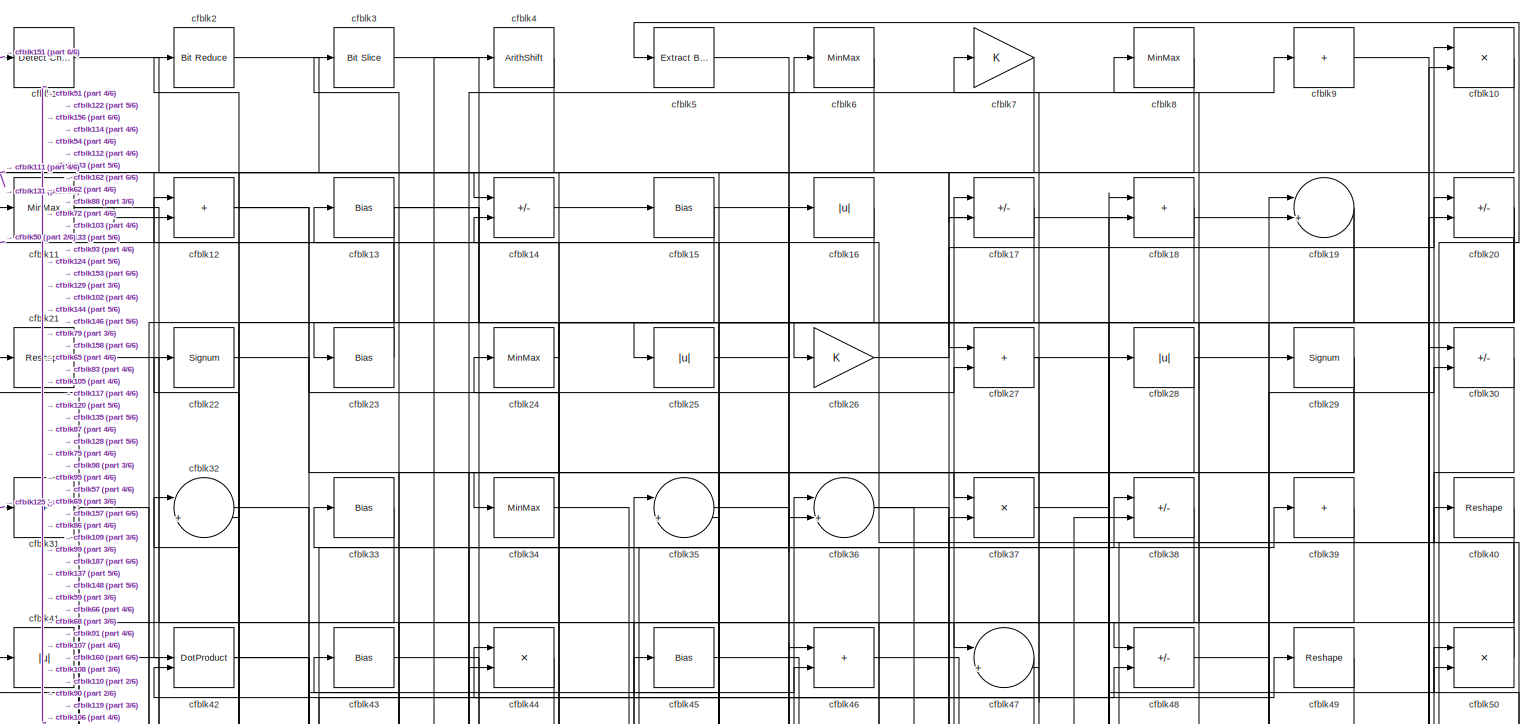
[diagram: root canvas - part 1/6, full width, top band]
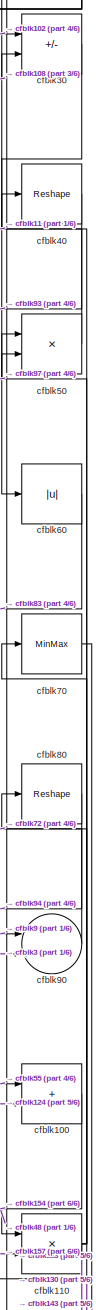
[diagram: root canvas - part 2/6, middle right region]
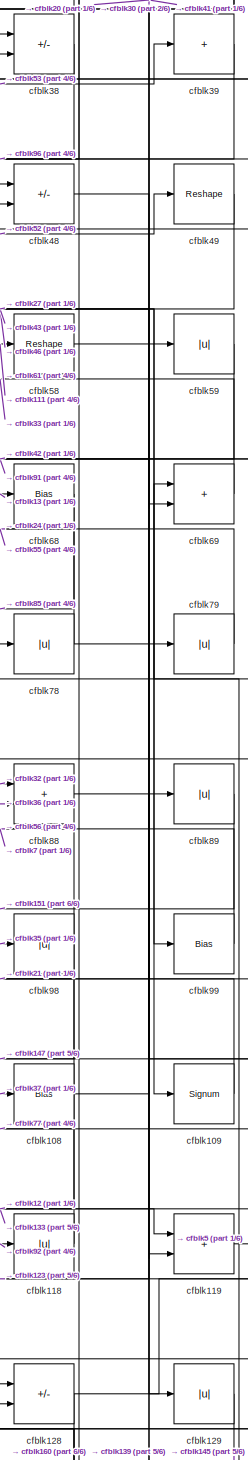
[diagram: root canvas - part 3/6, middle right region]
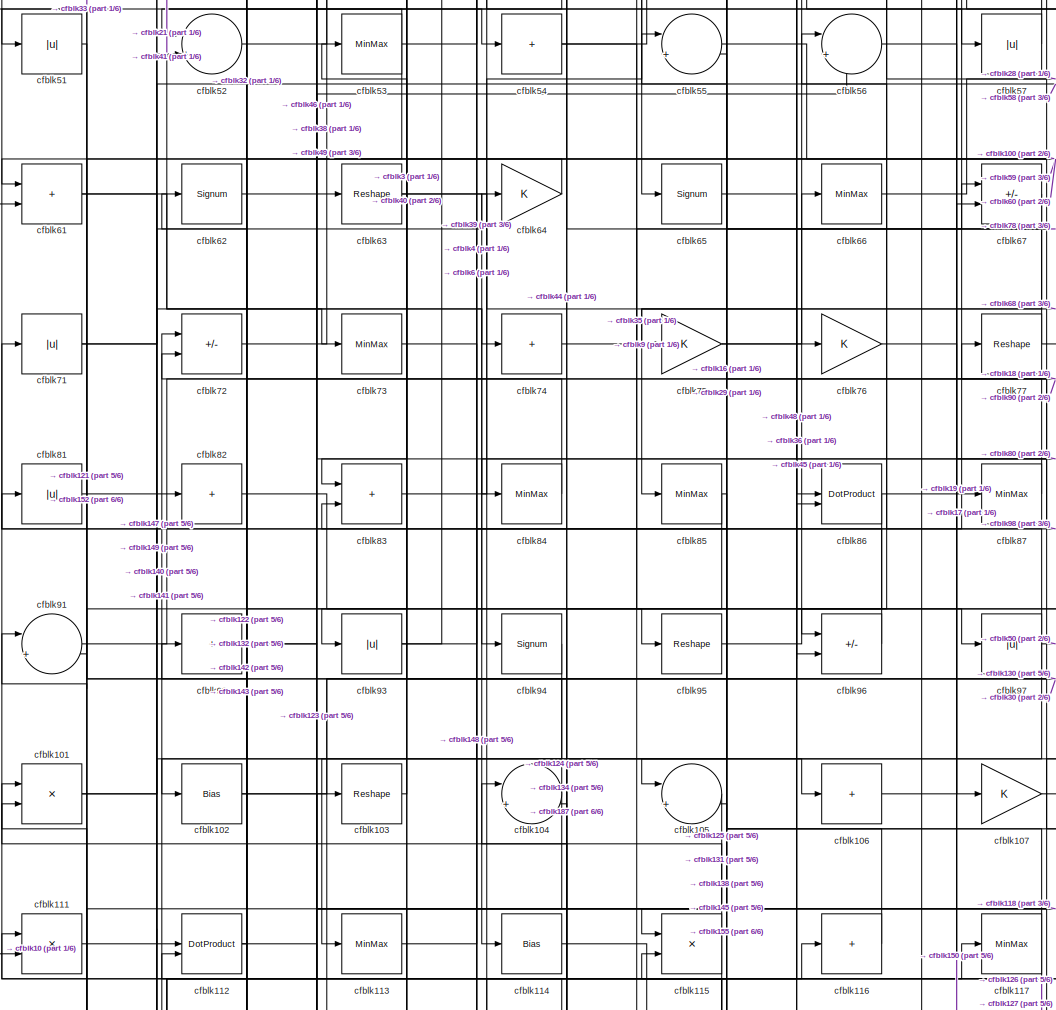
[diagram: root canvas - part 4/6, central region]
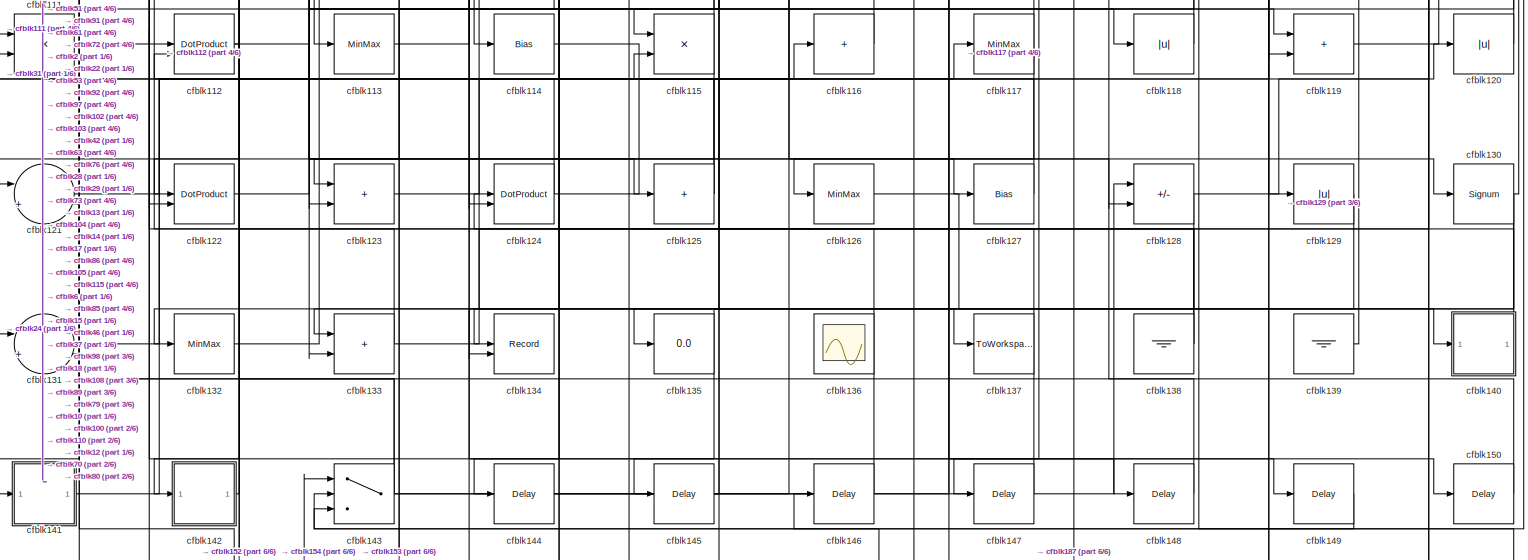
[diagram: root canvas - part 5/6, full width, bottom band]
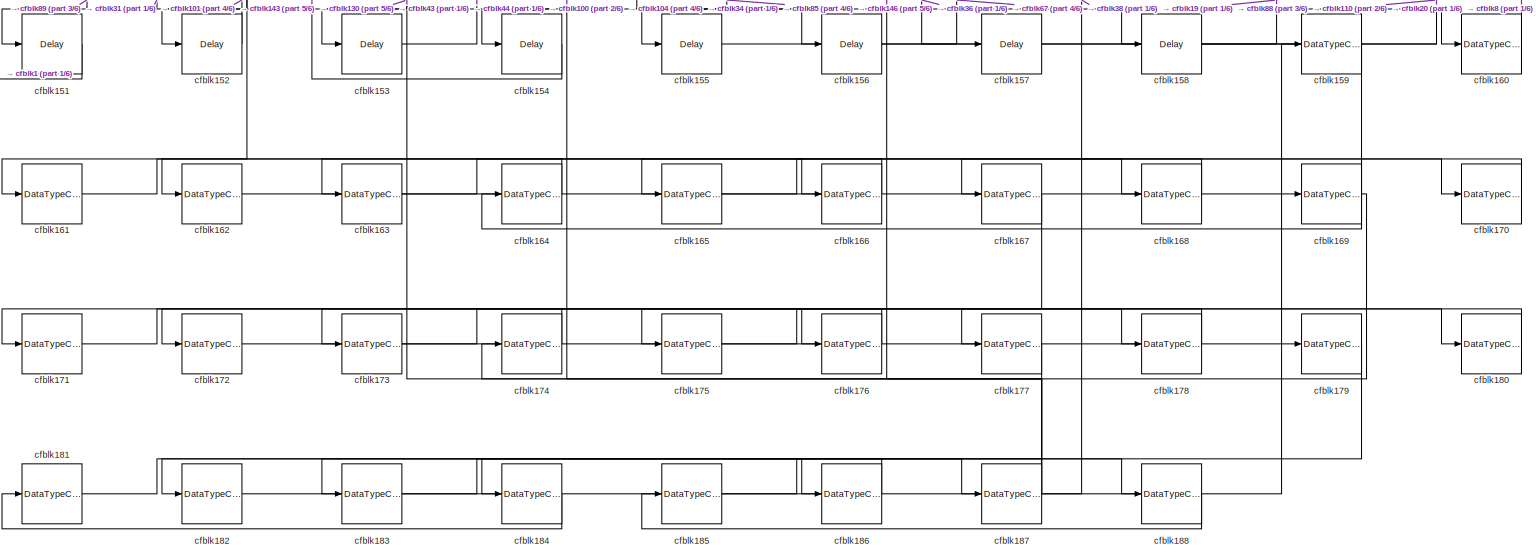
[diagram: root canvas - part 6/6, full width, bottom band]
MODEL slx_348a11d8d792
KIND model
CONFIG AbsTol = auto
CONFIG EnableMultiTasking = off
CONFIG FixedStep = auto
CONFIG MaxStep = auto
CONFIG MinStep = auto
CONFIG RelTol = 1e-3
CONFIG SampleTimeConstraint = Unconstrained
CONFIG SolverName = VariableStepAuto
CONFIG StartTime = 0.0
CONFIG StopTime = 10.0
BLOCK [Reference] cfblk1  REF=simulink/Logic and Bit
Operations/Detect
Change
  LibrarySourceBlock = hdlsllib/Logic and Bit\nOperations/Detect\nChange
  SourceBlock = simulink/Logic and Bit\nOperations/Detect\nChange
  SourceType = Detect Change
BLOCK [Product] cfblk10
  Inputs = */
  RndMeth = Zero
  SaturateOnIntegerOverflow = on
BLOCK [Sum] cfblk100
  IconShape = rectangular
BLOCK [Product] cfblk101
  Inputs = */
  RndMeth = Zero
  SaturateOnIntegerOverflow = on
BLOCK [Bias] cfblk102
  Bias = 0.0
  SaturateOnIntegerOverflow = off
BLOCK [Reshape] cfblk103
BLOCK [Sum] cfblk104
  Inputs = |++
BLOCK [Sum] cfblk105
  Inputs = |++
BLOCK [Sum] cfblk106
  IconShape = rectangular
  Inputs = +
BLOCK [Gain] cfblk107
BLOCK [Bias] cfblk108
  Bias = 0.0
  SaturateOnIntegerOverflow = off
BLOCK [Signum] cfblk109
BLOCK [MinMax] cfblk11
BLOCK [Product] cfblk110
  Inputs = */
  RndMeth = Zero
  SaturateOnIntegerOverflow = on
BLOCK [Product] cfblk111
  Inputs = */
  RndMeth = Zero
  SaturateOnIntegerOverflow = on
BLOCK [DotProduct] cfblk112
  OutDataTypeStr = Inherit: Inherit via internal rule
BLOCK [MinMax] cfblk113
BLOCK [Bias] cfblk114
  Bias = 0.0
  SaturateOnIntegerOverflow = off
BLOCK [Product] cfblk115
  Inputs = */
  RndMeth = Zero
  SaturateOnIntegerOverflow = on
BLOCK [Sum] cfblk116
  IconShape = rectangular
  Inputs = +
BLOCK [MinMax] cfblk117
BLOCK [Abs] cfblk118
  SaturateOnIntegerOverflow = off
BLOCK [Sum] cfblk119
  IconShape = rectangular
BLOCK [Sum] cfblk12
  IconShape = rectangular
BLOCK [Abs] cfblk120
  SaturateOnIntegerOverflow = off
BLOCK [Sum] cfblk121
  Inputs = |++
BLOCK [DotProduct] cfblk122
  OutDataTypeStr = Inherit: Inherit via internal rule
BLOCK [Sum] cfblk123
  IconShape = rectangular
BLOCK [DotProduct] cfblk124
  OutDataTypeStr = Inherit: Inherit via internal rule
BLOCK [Sum] cfblk125
  IconShape = rectangular
  Inputs = +
BLOCK [MinMax] cfblk126
BLOCK [Bias] cfblk127
  Bias = 0.0
  SaturateOnIntegerOverflow = off
BLOCK [Sum] cfblk128
  IconShape = rectangular
  Inputs = +-
BLOCK [Abs] cfblk129
  SaturateOnIntegerOverflow = off
BLOCK [Bias] cfblk13
  Bias = 0.0
  SaturateOnIntegerOverflow = off
BLOCK [Signum] cfblk130
BLOCK [Sum] cfblk131
  Inputs = |++
BLOCK [MinMax] cfblk132
BLOCK [Sum] cfblk133
  IconShape = rectangular
BLOCK [Record] cfblk134
  CompatibilityTag = XY
  FileSettingsInternal = {"entries":[{"content":{"excelSettings":{"content":{},"type":"Streamout.ExcelSettings"}},"type":"Streamout.FileSettingStorage","uuid":""}],"packageUris":["http:\/\/schema.mathworks.com\/mf0\/streamout_blocks\/R2020a"],"version":"1.0"}
  Layout = [1 1]
  SignalsInternal = {"entries":[{"content":{"signals":[{"content":{"blockPath":[],"dimensions":[1],"domain":"","lineColor":"#a2142f","plots":[1],"port":1,"signalID":1904,"signalName":"XY Graph:1"},"type":"RecordBlkView.Signal","uuid":""},{"content":{"blockPath":[],"dimensions":[1],"domain":"","lineColor":"#139fff","plots":[1],"port":2,"signalID":1907,"signalName":"XY Graph:2"},"type":"RecordBlkView.Signal","uuid":""}...<+146ch>
  VisualizationBindings = {"xyplotplugin":{"info":[{"series":[{"bindingParametersList":[{"parameter":"X-Axis","signalID":1904,"signalName":"XY Graph:1"},{"parameter":"Y-Axis","signalID":1907,"signalName":"XY Graph:2"}],"seriesID":52600}],"subplotID":1}]}}
  st = -1
BLOCK [Display] cfblk135
  Decimation = 1
BLOCK [Scope] cfblk136
  Floating = on
  NumInputPorts = 1
  ScopeSpecificationString = Simulink.scopes.TimeScopeBlockCfg('CurrentConfiguration', extmgr.ConfigurationSet(extmgr.Configuration('Core','General UI',true,'FigureColor',[0.156862745098039 0.156862745098039 0.156862745098039]),extmgr.Configuration('Core','Source UI',true),extmgr.Configuration('Sources','WiredSimulink',true,'DataLoggingVariableName','ScopeData1','DataLoggingSaveFormat','StructureWithTime','DataLoggingLimitDat...<+2713ch>
BLOCK [ToWorkspace] cfblk137
  MaxDataPoints = inf
  SampleTime = -1
  SaveFormat = Timeseries
  VariableName = simout
BLOCK [Ground] cfblk138
BLOCK [Ground] cfblk139
BLOCK [Sum] cfblk14
  IconShape = rectangular
  Inputs = +-
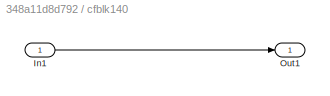
BLOCK [SubSystem] cfblk140
  LibrarySourceBlock = hdlsllib/Ports &\nSubsystems/Subsystem
BLOCK [Inport] cfblk140/In1
BLOCK [Outport] cfblk140/Out1
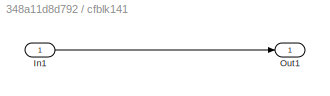
BLOCK [SubSystem] cfblk141
  LibrarySourceBlock = hdlsllib/Ports &\nSubsystems/Subsystem
BLOCK [Inport] cfblk141/In1
BLOCK [Outport] cfblk141/Out1
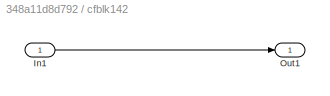
BLOCK [SubSystem] cfblk142
  LibrarySourceBlock = hdlsllib/Ports &\nSubsystems/Subsystem
BLOCK [Inport] cfblk142/In1
BLOCK [Outport] cfblk142/Out1
BLOCK [Switch] cfblk143
  InputSameDT = off
  SaturateOnIntegerOverflow = off
BLOCK [Delay] cfblk144
  InputPortMap = u0
  SampleTime = 1
BLOCK [Delay] cfblk145
  InputPortMap = u0
  SampleTime = 1
BLOCK [Delay] cfblk146
  InputPortMap = u0
  SampleTime = 1
BLOCK [Delay] cfblk147
  InputPortMap = u0
  SampleTime = 1
BLOCK [Delay] cfblk148
  InputPortMap = u0
  SampleTime = 1
BLOCK [Delay] cfblk149
  InputPortMap = u0
  SampleTime = 1
BLOCK [Bias] cfblk15
  Bias = 0.0
  SaturateOnIntegerOverflow = off
BLOCK [Delay] cfblk150
  InputPortMap = u0
  SampleTime = 1
BLOCK [Delay] cfblk151
  InputPortMap = u0
  SampleTime = 1
BLOCK [Delay] cfblk152
  InputPortMap = u0
  SampleTime = 1
BLOCK [Delay] cfblk153
  InputPortMap = u0
  SampleTime = 1
BLOCK [Delay] cfblk154
  InputPortMap = u0
  SampleTime = 1
BLOCK [Delay] cfblk155
  InputPortMap = u0
  SampleTime = 1
BLOCK [Delay] cfblk156
  InputPortMap = u0
  SampleTime = 1
BLOCK [Delay] cfblk157
  InputPortMap = u0
  SampleTime = 1
BLOCK [Delay] cfblk158
  InputPortMap = u0
  SampleTime = 1
BLOCK [DataTypeConversion] cfblk159
  RndMeth = Floor
  SaturateOnIntegerOverflow = off
BLOCK [Abs] cfblk16
  SaturateOnIntegerOverflow = off
BLOCK [DataTypeConversion] cfblk160
  OutDataTypeStr = uint8
  RndMeth = Floor
  SaturateOnIntegerOverflow = off
BLOCK [DataTypeConversion] cfblk161
  RndMeth = Floor
  SaturateOnIntegerOverflow = off
BLOCK [DataTypeConversion] cfblk162
  OutDataTypeStr = uint8
  RndMeth = Floor
  SaturateOnIntegerOverflow = off
BLOCK [DataTypeConversion] cfblk163
  RndMeth = Floor
  SaturateOnIntegerOverflow = off
BLOCK [DataTypeConversion] cfblk164
  OutDataTypeStr = uint8
  RndMeth = Floor
  SaturateOnIntegerOverflow = off
BLOCK [DataTypeConversion] cfblk165
  RndMeth = Floor
  SaturateOnIntegerOverflow = off
BLOCK [DataTypeConversion] cfblk166
  OutDataTypeStr = uint8
  RndMeth = Floor
  SaturateOnIntegerOverflow = off
BLOCK [DataTypeConversion] cfblk167
  RndMeth = Floor
  SaturateOnIntegerOverflow = off
BLOCK [DataTypeConversion] cfblk168
  OutDataTypeStr = uint8
  RndMeth = Floor
  SaturateOnIntegerOverflow = off
BLOCK [DataTypeConversion] cfblk169
  RndMeth = Floor
  SaturateOnIntegerOverflow = off
BLOCK [Sum] cfblk17
  IconShape = rectangular
  Inputs = +-
BLOCK [DataTypeConversion] cfblk170
  OutDataTypeStr = uint8
  RndMeth = Floor
  SaturateOnIntegerOverflow = off
BLOCK [DataTypeConversion] cfblk171
  RndMeth = Floor
  SaturateOnIntegerOverflow = off
BLOCK [DataTypeConversion] cfblk172
  OutDataTypeStr = uint8
  RndMeth = Floor
  SaturateOnIntegerOverflow = off
BLOCK [DataTypeConversion] cfblk173
  RndMeth = Floor
  SaturateOnIntegerOverflow = off
BLOCK [DataTypeConversion] cfblk174
  OutDataTypeStr = uint8
  RndMeth = Floor
  SaturateOnIntegerOverflow = off
BLOCK [DataTypeConversion] cfblk175
  RndMeth = Floor
  SaturateOnIntegerOverflow = off
BLOCK [DataTypeConversion] cfblk176
  OutDataTypeStr = uint8
  RndMeth = Floor
  SaturateOnIntegerOverflow = off
BLOCK [DataTypeConversion] cfblk177
  RndMeth = Floor
  SaturateOnIntegerOverflow = off
BLOCK [DataTypeConversion] cfblk178
  OutDataTypeStr = uint8
  RndMeth = Floor
  SaturateOnIntegerOverflow = off
BLOCK [DataTypeConversion] cfblk179
  RndMeth = Floor
  SaturateOnIntegerOverflow = off
BLOCK [Sum] cfblk18
  IconShape = rectangular
BLOCK [DataTypeConversion] cfblk180
  OutDataTypeStr = uint8
  RndMeth = Floor
  SaturateOnIntegerOverflow = off
BLOCK [DataTypeConversion] cfblk181
  RndMeth = Floor
  SaturateOnIntegerOverflow = off
BLOCK [DataTypeConversion] cfblk182
  OutDataTypeStr = uint8
  RndMeth = Floor
  SaturateOnIntegerOverflow = off
BLOCK [DataTypeConversion] cfblk183
  RndMeth = Floor
  SaturateOnIntegerOverflow = off
BLOCK [DataTypeConversion] cfblk184
  OutDataTypeStr = uint8
  RndMeth = Floor
  SaturateOnIntegerOverflow = off
BLOCK [DataTypeConversion] cfblk185
  RndMeth = Floor
  SaturateOnIntegerOverflow = off
BLOCK [DataTypeConversion] cfblk186
  OutDataTypeStr = uint8
  RndMeth = Floor
  SaturateOnIntegerOverflow = off
BLOCK [DataTypeConversion] cfblk187
  RndMeth = Floor
  SaturateOnIntegerOverflow = off
BLOCK [DataTypeConversion] cfblk188
  OutDataTypeStr = uint8
  RndMeth = Floor
  SaturateOnIntegerOverflow = off
BLOCK [Sum] cfblk19
  Inputs = |++
BLOCK [Reference] cfblk2  REF=hdlsllib/Logic and Bit
Operations/Bit Reduce
  SourceBlock = hdlsllib/Logic and Bit\nOperations/Bit Reduce
  SourceType = Bit Reduce
BLOCK [Sum] cfblk20
  IconShape = rectangular
  Inputs = +-
BLOCK [Reshape] cfblk21
BLOCK [Signum] cfblk22
BLOCK [Bias] cfblk23
  Bias = 0.0
  SaturateOnIntegerOverflow = off
BLOCK [MinMax] cfblk24
BLOCK [Abs] cfblk25
  SaturateOnIntegerOverflow = off
BLOCK [Gain] cfblk26
BLOCK [Sum] cfblk27
  IconShape = rectangular
BLOCK [Abs] cfblk28
  SaturateOnIntegerOverflow = off
BLOCK [Signum] cfblk29
BLOCK [Reference] cfblk3  REF=hdlsllib/Logic and Bit
Operations/Bit Slice
  SourceBlock = hdlsllib/Logic and Bit\nOperations/Bit Slice
  SourceType = Bit Slice
BLOCK [Sum] cfblk30
  IconShape = rectangular
  Inputs = +-
BLOCK [Sum] cfblk31
  IconShape = rectangular
  Inputs = +
BLOCK [Sum] cfblk32
  Inputs = |++
BLOCK [Bias] cfblk33
  Bias = 0.0
  SaturateOnIntegerOverflow = off
BLOCK [MinMax] cfblk34
BLOCK [Sum] cfblk35
  Inputs = |++
BLOCK [Sum] cfblk36
  Inputs = |++
BLOCK [Product] cfblk37
  Inputs = */
  RndMeth = Zero
  SaturateOnIntegerOverflow = on
BLOCK [Sum] cfblk38
  IconShape = rectangular
  Inputs = +-
BLOCK [Sum] cfblk39
  IconShape = rectangular
  Inputs = +
BLOCK [ArithShift] cfblk4
  BitShiftNumber = 8
  InputPortMap = u0
BLOCK [Reshape] cfblk40
BLOCK [Abs] cfblk41
  SaturateOnIntegerOverflow = off
BLOCK [DotProduct] cfblk42
  OutDataTypeStr = Inherit: Inherit via internal rule
BLOCK [Bias] cfblk43
  Bias = 0.0
  SaturateOnIntegerOverflow = off
BLOCK [Product] cfblk44
  Inputs = */
  RndMeth = Zero
  SaturateOnIntegerOverflow = on
BLOCK [Bias] cfblk45
  Bias = 0.0
  SaturateOnIntegerOverflow = off
BLOCK [Sum] cfblk46
  IconShape = rectangular
BLOCK [Sum] cfblk47
  Inputs = |++
BLOCK [Sum] cfblk48
  IconShape = rectangular
  Inputs = +-
BLOCK [Reshape] cfblk49
BLOCK [Reference] cfblk5  REF=simulink/Logic and Bit
Operations/Extract Bits
  LibrarySourceBlock = hdlsllib/Logic and Bit\nOperations/Extract Bits
  SourceBlock = simulink/Logic and Bit\nOperations/Extract Bits
  SourceType = Extract Bits
BLOCK [Product] cfblk50
  Inputs = */
  RndMeth = Zero
  SaturateOnIntegerOverflow = on
BLOCK [Abs] cfblk51
  SaturateOnIntegerOverflow = off
BLOCK [Sum] cfblk52
  Inputs = |++
BLOCK [MinMax] cfblk53
BLOCK [Sum] cfblk54
  IconShape = rectangular
  Inputs = +
BLOCK [Sum] cfblk55
  Inputs = |++
BLOCK [Sum] cfblk56
  Inputs = |++
BLOCK [Abs] cfblk57
  SaturateOnIntegerOverflow = off
BLOCK [Reshape] cfblk58
BLOCK [Abs] cfblk59
  SaturateOnIntegerOverflow = off
BLOCK [MinMax] cfblk6
BLOCK [Abs] cfblk60
  SaturateOnIntegerOverflow = off
BLOCK [Sum] cfblk61
  IconShape = rectangular
BLOCK [Signum] cfblk62
BLOCK [Reshape] cfblk63
BLOCK [Gain] cfblk64
BLOCK [Signum] cfblk65
BLOCK [MinMax] cfblk66
BLOCK [Sum] cfblk67
  IconShape = rectangular
  Inputs = +-
BLOCK [Bias] cfblk68
  Bias = 0.0
  SaturateOnIntegerOverflow = off
BLOCK [Sum] cfblk69
  IconShape = rectangular
BLOCK [Gain] cfblk7
BLOCK [MinMax] cfblk70
BLOCK [Abs] cfblk71
  SaturateOnIntegerOverflow = off
BLOCK [Sum] cfblk72
  IconShape = rectangular
  Inputs = +-
BLOCK [MinMax] cfblk73
BLOCK [Sum] cfblk74
  IconShape = rectangular
  Inputs = +
BLOCK [Gain] cfblk75
BLOCK [Gain] cfblk76
BLOCK [Reshape] cfblk77
BLOCK [Abs] cfblk78
  SaturateOnIntegerOverflow = off
BLOCK [Abs] cfblk79
  SaturateOnIntegerOverflow = off
BLOCK [MinMax] cfblk8
BLOCK [Reshape] cfblk80
BLOCK [Abs] cfblk81
  SaturateOnIntegerOverflow = off
BLOCK [Sum] cfblk82
  IconShape = rectangular
  Inputs = +
BLOCK [Sum] cfblk83
  IconShape = rectangular
BLOCK [MinMax] cfblk84
BLOCK [MinMax] cfblk85
BLOCK [DotProduct] cfblk86
  OutDataTypeStr = Inherit: Inherit via internal rule
BLOCK [MinMax] cfblk87
BLOCK [Sum] cfblk88
  IconShape = rectangular
BLOCK [Abs] cfblk89
  SaturateOnIntegerOverflow = off
BLOCK [Sum] cfblk9
  IconShape = rectangular
  Inputs = +
BLOCK [Sum] cfblk90
  Inputs = |++
BLOCK [Sum] cfblk91
  Inputs = |++
BLOCK [Sum] cfblk92
  IconShape = rectangular
  Inputs = +
BLOCK [Abs] cfblk93
  SaturateOnIntegerOverflow = off
BLOCK [Signum] cfblk94
BLOCK [Reshape] cfblk95
BLOCK [Sum] cfblk96
  IconShape = rectangular
  Inputs = +-
BLOCK [Abs] cfblk97
  SaturateOnIntegerOverflow = off
BLOCK [Abs] cfblk98
  SaturateOnIntegerOverflow = off
BLOCK [Bias] cfblk99
  Bias = 0.0
  SaturateOnIntegerOverflow = off
LINE cfblk100:1 -> cfblk154:1
NET cfblk101:1 -> cfblk106:1, cfblk52:2
NET cfblk102:1 -> cfblk130:1, cfblk30:1
LINE cfblk103:1 -> cfblk3:1
NET cfblk104:1 -> cfblk123:2, cfblk53:1
LINE cfblk105:1 -> cfblk121:1
LINE cfblk106:1 -> cfblk19:2
LINE cfblk107:1 -> cfblk10:1
NET cfblk108:1 -> cfblk133:2, cfblk30:2, cfblk41:1
LINE cfblk109:1 -> cfblk21:1
LINE cfblk10:1 -> cfblk111:2
NET cfblk110:1 -> cfblk123:1, cfblk40:1, cfblk50:2, cfblk70:1
LINE cfblk111:1 -> cfblk58:1
NET cfblk112:1 -> cfblk127:1, cfblk32:1
LINE cfblk113:1 -> cfblk87:1
LINE cfblk114:1 -> cfblk116:1
NET cfblk115:1 -> cfblk101:1, cfblk131:2
LINE cfblk116:1 -> cfblk81:1
NET cfblk117:1 -> cfblk126:1, cfblk45:1
LINE cfblk118:1 -> cfblk77:1
LINE cfblk119:1 -> cfblk5:1
NET cfblk11:1 -> cfblk12:2, cfblk47:1
LINE cfblk120:1 -> cfblk12:1
LINE cfblk121:1 -> cfblk63:1
LINE cfblk122:1 -> cfblk103:1
LINE cfblk123:1 -> cfblk89:1
NET cfblk124:1 -> cfblk100:2, cfblk91:1
NET cfblk125:1 -> cfblk104:2, cfblk31:1
LINE cfblk126:1 -> cfblk140:1
LINE cfblk127:1 -> cfblk72:1
NET cfblk128:1 -> cfblk120:1, cfblk134:2
LINE cfblk129:1 -> cfblk145:1
NET cfblk12:1 -> cfblk119:1, cfblk37:1
NET cfblk130:1 -> cfblk152:1, cfblk153:1, cfblk80:1
LINE cfblk131:1 -> cfblk86:2
LINE cfblk132:1 -> cfblk76:1
NET cfblk133:1 -> cfblk10:2, cfblk2:1
NET cfblk138:1 -> cfblk105:2, cfblk124:1
LINE cfblk139:1 -> cfblk79:1
NET cfblk13:1 -> cfblk122:2, cfblk137:1, cfblk68:1
LINE cfblk140/In1:1 -> cfblk140/Out1:1
LINE cfblk140:1 -> cfblk112:2
LINE cfblk141/In1:1 -> cfblk141/Out1:1
LINE cfblk141:1 -> cfblk117:1
LINE cfblk142/In1:1 -> cfblk142/Out1:1
LINE cfblk142:1 -> cfblk92:1
NET cfblk143:1 -> cfblk111:1, cfblk128:1, cfblk22:1, cfblk37:2
LINE cfblk144:1 -> cfblk46:1
LINE cfblk145:1 -> cfblk115:2
LINE cfblk146:1 -> cfblk14:2
LINE cfblk147:1 -> cfblk112:1
LINE cfblk148:1 -> cfblk18:1
LINE cfblk149:1 -> cfblk143:3
LINE cfblk14:1 -> cfblk15:1
LINE cfblk150:1 -> cfblk121:2
LINE cfblk151:1 -> cfblk1:1
LINE cfblk152:1 -> cfblk101:2
LINE cfblk153:1 -> cfblk44:2
LINE cfblk154:1 -> cfblk143:1
LINE cfblk155:1 -> cfblk67:2
LINE cfblk156:1 -> cfblk19:1
LINE cfblk157:1 -> cfblk110:2
LINE cfblk158:1 -> cfblk20:2
LINE cfblk159:1 -> cfblk164:1
NET cfblk15:1 -> cfblk128:2, cfblk25:1
LINE cfblk160:1 -> cfblk8:1
LINE cfblk161:1 -> cfblk166:1
LINE cfblk162:1 -> cfblk159:1
LINE cfblk163:1 -> cfblk168:1
LINE cfblk164:1 -> cfblk161:1
LINE cfblk165:1 -> cfblk170:1
LINE cfblk166:1 -> cfblk163:1
LINE cfblk167:1 -> cfblk172:1
LINE cfblk168:1 -> cfblk165:1
LINE cfblk169:1 -> cfblk174:1
LINE cfblk16:1 -> cfblk75:1
LINE cfblk170:1 -> cfblk167:1
LINE cfblk171:1 -> cfblk176:1
LINE cfblk172:1 -> cfblk169:1
LINE cfblk173:1 -> cfblk178:1
LINE cfblk174:1 -> cfblk171:1
LINE cfblk175:1 -> cfblk180:1
LINE cfblk176:1 -> cfblk173:1
LINE cfblk177:1 -> cfblk182:1
LINE cfblk178:1 -> cfblk175:1
LINE cfblk179:1 -> cfblk184:1
LINE cfblk17:1 -> cfblk144:1
LINE cfblk180:1 -> cfblk177:1
LINE cfblk181:1 -> cfblk186:1
LINE cfblk182:1 -> cfblk179:1
LINE cfblk183:1 -> cfblk188:1
LINE cfblk184:1 -> cfblk181:1
LINE cfblk185:1 -> cfblk187:1
LINE cfblk186:1 -> cfblk183:1
NET cfblk187:1 -> cfblk104:1, cfblk146:1, cfblk38:2, cfblk43:1
LINE cfblk188:1 -> cfblk185:1
LINE cfblk18:1 -> cfblk23:1
NET cfblk19:1 -> cfblk26:1, cfblk32:2
LINE cfblk1:1 -> cfblk14:1
NET cfblk20:1 -> cfblk119:2, cfblk34:1, cfblk48:1
LINE cfblk21:1 -> cfblk54:1
LINE cfblk22:1 -> cfblk27:2
LINE cfblk23:1 -> cfblk13:1
LINE cfblk24:1 -> cfblk131:1
LINE cfblk25:1 -> cfblk16:1
LINE cfblk26:1 -> cfblk20:1
NET cfblk27:1 -> cfblk47:2, cfblk59:1
NET cfblk28:1 -> cfblk133:1, cfblk29:1
NET cfblk29:1 -> cfblk105:1, cfblk124:2
LINE cfblk2:1 -> cfblk27:1
LINE cfblk30:1 -> cfblk60:1
LINE cfblk31:1 -> cfblk156:1
LINE cfblk32:1 -> cfblk88:1
LINE cfblk33:1 -> cfblk51:1
LINE cfblk34:1 -> cfblk158:1
LINE cfblk35:1 -> cfblk98:1
NET cfblk36:1 -> cfblk157:1, cfblk88:2
LINE cfblk37:1 -> cfblk108:1
LINE cfblk38:1 -> cfblk65:1
LINE cfblk39:1 -> cfblk96:1
LINE cfblk3:1 -> cfblk90:2
LINE cfblk40:1 -> cfblk93:1
LINE cfblk41:1 -> cfblk114:1
NET cfblk42:1 -> cfblk125:1, cfblk69:2
LINE cfblk43:1 -> cfblk129:1
LINE cfblk44:1 -> cfblk102:1
LINE cfblk45:1 -> cfblk57:1
LINE cfblk46:1 -> cfblk109:1
LINE cfblk47:1 -> cfblk42:2
LINE cfblk48:1 -> cfblk110:1
LINE cfblk49:1 -> cfblk61:2
LINE cfblk4:1 -> cfblk42:1
LINE cfblk50:1 -> cfblk11:1
LINE cfblk51:1 -> cfblk141:1
LINE cfblk52:1 -> cfblk49:1
NET cfblk53:1 -> cfblk132:1, cfblk39:1, cfblk52:1
NET cfblk54:1 -> cfblk97:1, cfblk9:1
LINE cfblk55:1 -> cfblk100:1
LINE cfblk56:1 -> cfblk107:1
LINE cfblk57:1 -> cfblk44:1
LINE cfblk58:1 -> cfblk99:1
LINE cfblk59:1 -> cfblk91:2
LINE cfblk5:1 -> cfblk36:2
LINE cfblk60:1 -> cfblk83:1
NET cfblk61:1 -> cfblk149:1, cfblk73:1
LINE cfblk62:1 -> cfblk46:2
NET cfblk63:1 -> cfblk84:1, cfblk96:2
LINE cfblk64:1 -> cfblk61:1
LINE cfblk65:1 -> cfblk86:1
LINE cfblk66:1 -> cfblk28:1
LINE cfblk67:1 -> cfblk115:1
LINE cfblk68:1 -> cfblk85:1
LINE cfblk69:1 -> cfblk33:1
LINE cfblk6:1 -> cfblk135:1
LINE cfblk70:1 -> cfblk143:2
NET cfblk71:1 -> cfblk64:1, cfblk74:1
LINE cfblk72:1 -> cfblk38:1
LINE cfblk73:1 -> cfblk148:1
LINE cfblk74:1 -> cfblk67:1
NET cfblk75:1 -> cfblk48:2, cfblk66:1
LINE cfblk76:1 -> cfblk150:1
NET cfblk77:1 -> cfblk55:2, cfblk78:1
NET cfblk78:1 -> cfblk55:1, cfblk69:1
LINE cfblk79:1 -> cfblk24:1
LINE cfblk7:1 -> cfblk17:2
LINE cfblk80:1 -> cfblk94:1
LINE cfblk81:1 -> cfblk82:1
LINE cfblk82:1 -> cfblk95:1
LINE cfblk83:1 -> cfblk35:1
LINE cfblk84:1 -> cfblk62:1
NET cfblk85:1 -> cfblk142:1, cfblk155:1
NET cfblk86:1 -> cfblk134:1, cfblk17:1
LINE cfblk87:1 -> cfblk35:2
LINE cfblk88:1 -> cfblk160:1
LINE cfblk89:1 -> cfblk151:1
LINE cfblk8:1 -> cfblk162:1
LINE cfblk90:1 -> cfblk72:2
LINE cfblk91:1 -> cfblk18:2
NET cfblk92:1 -> cfblk118:1, cfblk56:2
NET cfblk93:1 -> cfblk4:1, cfblk6:1
LINE cfblk94:1 -> cfblk113:1
LINE cfblk95:1 -> cfblk36:1
LINE cfblk96:1 -> cfblk83:2
NET cfblk97:1 -> cfblk122:1, cfblk50:1, cfblk71:1
NET cfblk98:1 -> cfblk147:1, cfblk56:1
LINE cfblk99:1 -> cfblk7:1
LINE cfblk9:1 -> cfblk90:1
note: NET lines group one-source signal fan-out (src -> all destinations, sorted); 1:1 wires keep LINE
